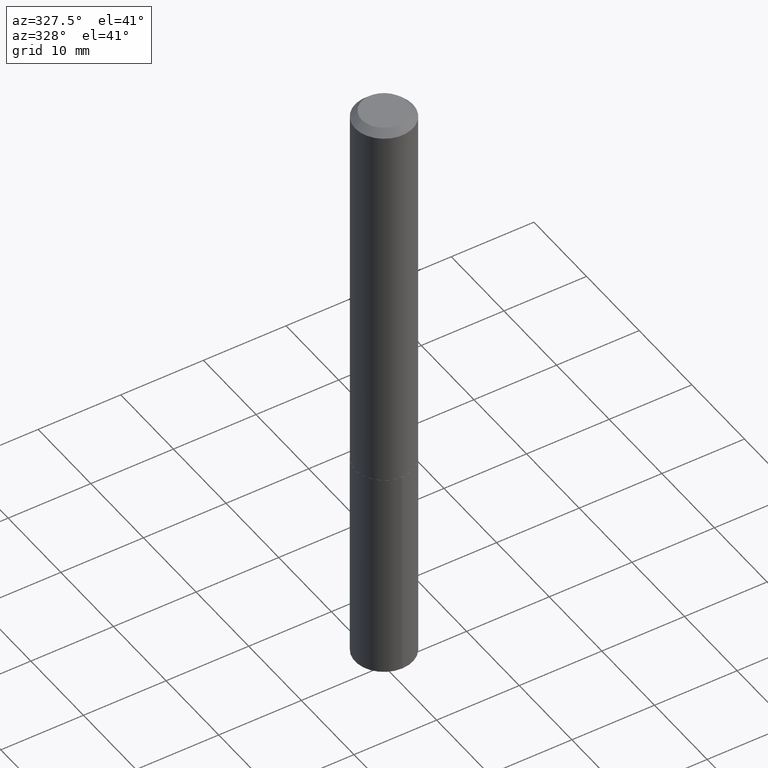
[diagram: clean part render]
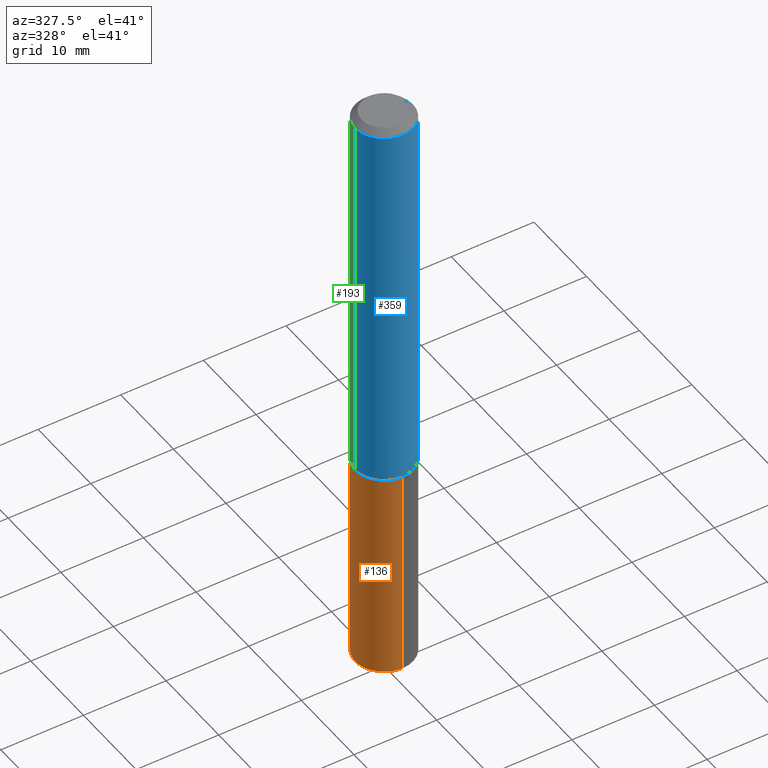
[diagram: same view with three faces highlighted in distinct colors, each labeled with its STEP entity id]
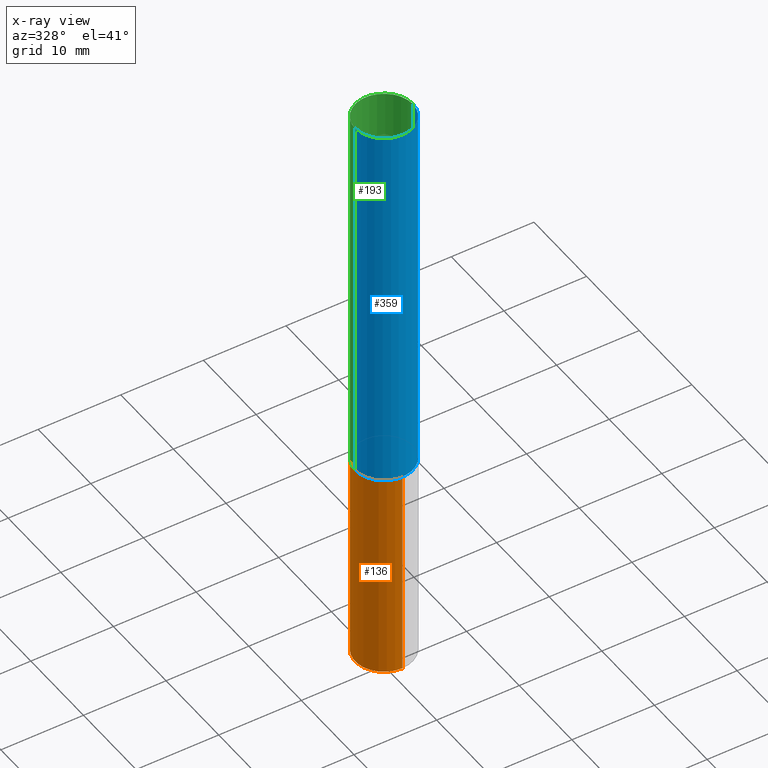
[diagram: x-ray of the same camera — body ghosted, the three highlighted faces saturated]
A machine part, auxiliary view with three faces highlighted in distinct colors.
The next image is the same camera in x-ray (body ghosted, the three faces saturated) — at least one of them is partly hidden behind the body in this view.
Their STEP definitions:

[orange] entity #136 — the highlighted cylindrical surface (edge-blend (fillet) strip) has radius 3.5001 mm, axis along (-0, 0, 1).
#27 = VERTEX_POINT ( 'NONE', #224 ) ;
#28 = CARTESIAN_POINT ( 'NONE',  ( 9.791278898774632598E-16, 0.1377999999999935665, -1.850400000000000489 ) ) ;
#39 = CARTESIAN_POINT ( 'NONE',  ( -9.622522569851223147E-16, -0.1378000000000064729, -1.850399999999999379 ) ) ;
#50 = ORIENTED_EDGE ( 'NONE', *, *, #162, .F. ) ;
#65 = CARTESIAN_POINT ( 'NONE',  ( 4.525095478964976833E-29, -6.460637069395356787E-15, -1.850400000000000045 ) ) ;
#76 = CIRCLE ( 'NONE', #302, 0.1378000000000000058 ) ;
#86 = ORIENTED_EDGE ( 'NONE', *, *, #241, .T. ) ;
#91 = AXIS2_PLACEMENT_3D ( 'NONE', #65, #169, #341 ) ;
#95 = CYLINDRICAL_SURFACE ( 'NONE', #91, 0.1378000000000000058 ) ;
#100 = DIRECTION ( 'NONE',  ( -2.445373653169523645E-29, 3.491617603377276597E-15, 1.000000000000000000 ) ) ;
#106 = CARTESIAN_POINT ( 'NONE',  ( 7.018280654488695032E-29, -1.002052217572859290E-14, -2.869951826892477520 ) ) ;
#109 = DIRECTION ( 'NONE',  ( -6.982962677686265922E-15, -1.000000000000000000, 3.964946289788480896E-15 ) ) ;
#127 = CARTESIAN_POINT ( 'NONE',  ( 4.525095478964976833E-29, -6.460637069395356787E-15, -1.850400000000000045 ) ) ;
#136 = ADVANCED_FACE ( 'NONE', ( #225 ), #95, .T. ) ;
#144 = CARTESIAN_POINT ( 'NONE',  ( -9.622522569851223147E-16, -0.1378000000000064729, -1.850399999999999379 ) ) ;
#159 = DIRECTION ( 'NONE',  ( -2.445373653169523925E-29, 3.491617603377276597E-15, 1.000000000000000000 ) ) ;
#162 = EDGE_CURVE ( 'NONE', #335, #27, #309, .T. ) ;
#169 = DIRECTION ( 'NONE',  ( -2.445373653169523645E-29, 3.491617603377276597E-15, 1.000000000000000000 ) ) ;
#180 = ORIENTED_EDGE ( 'NONE', *, *, #299, .F. ) ;
#196 = CIRCLE ( 'NONE', #203, 0.1378000000000000058 ) ;
#203 = AXIS2_PLACEMENT_3D ( 'NONE', #106, #320, #236 ) ;
#221 = CARTESIAN_POINT ( 'NONE',  ( -9.622522569850970711E-16, -0.1378000000000100256, -2.869951826892476632 ) ) ;
#224 = CARTESIAN_POINT ( 'NONE',  ( 9.791278898774887005E-16, 0.1377999999999935665, -1.850400000000000489 ) ) ;
#225 = FACE_OUTER_BOUND ( 'NONE', #256, .T. ) ;
#226 = EDGE_CURVE ( 'NONE', #308, #248, #381, .T. ) ;
#229 = DIRECTION ( 'NONE',  ( -2.445373653169523925E-29, 3.491617603377276597E-15, 1.000000000000000000 ) ) ;
#236 = DIRECTION ( 'NONE',  ( -6.982962677686265922E-15, -1.000000000000000000, 3.964946289788480896E-15 ) ) ;
#241 = EDGE_CURVE ( 'NONE', #335, #308, #196, .T. ) ;
#248 = VERTEX_POINT ( 'NONE', #39 ) ;
#256 = EDGE_LOOP ( 'NONE', ( #50, #86, #275, #180 ) ) ;
#260 = CARTESIAN_POINT ( 'NONE',  ( 9.791278898774883061E-16, 0.1377999999999899583, -2.869951826892477964 ) ) ;
#275 = ORIENTED_EDGE ( 'NONE', *, *, #226, .T. ) ;
#276 = VECTOR ( 'NONE', #159, 39.37007874015748143 ) ;
#299 = EDGE_CURVE ( 'NONE', #27, #248, #76, .T. ) ;
#302 = AXIS2_PLACEMENT_3D ( 'NONE', #127, #100, #109 ) ;
#308 = VERTEX_POINT ( 'NONE', #221 ) ;
#309 = LINE ( 'NONE', #28, #276 ) ;
#310 = VECTOR ( 'NONE', #229, 39.37007874015748143 ) ;
#320 = DIRECTION ( 'NONE',  ( -2.445373653169523645E-29, 3.491617603377276597E-15, 1.000000000000000000 ) ) ;
#335 = VERTEX_POINT ( 'NONE', #260 ) ;
#341 = DIRECTION ( 'NONE',  ( -6.982962677686265922E-15, -1.000000000000000000, 3.964946289788480896E-15 ) ) ;
#381 = LINE ( 'NONE', #144, #310 ) ;

[blue] entity #359 — the highlighted cylindrical surface (edge-blend (fillet) strip) has radius 3.5001 mm, axis along (-0, 0, 1).
#9 = VECTOR ( 'NONE', #40, 39.37007874015748143 ) ;
#14 = CARTESIAN_POINT ( 'NONE',  ( -0.1378000000000002279, -5.479763438848515411E-15, -1.849900000000000100 ) ) ;
#20 = CARTESIAN_POINT ( 'NONE',  ( -0.1378000000000001446, 9.791278898774190835E-16, -6.778292554371267040E-30 ) ) ;
#31 = DIRECTION ( 'NONE',  ( -2.445468806185136597E-29, 3.491481338843145583E-15, 1.000000000000000000 ) ) ;
#33 = LINE ( 'NONE', #287, #60 ) ;
#35 = CARTESIAN_POINT ( 'NONE',  ( -0.1378000000000000058, -2.304872170404972320E-15, -0.03125000000000020123 ) ) ;
#40 = DIRECTION ( 'NONE',  ( -2.445468806185136877E-29, 3.491481338843145188E-15, 1.000000000000000000 ) ) ;
#54 = ORIENTED_EDGE ( 'NONE', *, *, #194, .F. ) ;
#55 = ORIENTED_EDGE ( 'NONE', *, *, #338, .F. ) ;
#60 = VECTOR ( 'NONE', #191, 39.37007874015748143 ) ;
#61 = DIRECTION ( 'NONE',  ( 1.000000000000000000, -6.982962677686265922E-15, 4.876176775795935232E-29 ) ) ;
#103 = DIRECTION ( 'NONE',  ( 1.000000000000000000, -6.982962677686269077E-15, 0.000000000000000000 ) ) ;
#107 = CIRCLE ( 'NONE', #350, 0.1378000000000000058 ) ;
#122 = EDGE_CURVE ( 'NONE', #371, #332, #348, .T. ) ;
#128 = CARTESIAN_POINT ( 'NONE',  ( 4.523872744561884592E-29, -6.458891328725935284E-15, -1.849900000000000100 ) ) ;
#138 = CARTESIAN_POINT ( 'NONE',  ( 0.1378000000000000058, -1.071361048824016578E-15, -0.03125000000000020123 ) ) ;
#160 = ORIENTED_EDGE ( 'NONE', *, *, #370, .T. ) ;
#191 = DIRECTION ( 'NONE',  ( -2.445468806185136877E-29, 3.491481338843145188E-15, 1.000000000000000000 ) ) ;
#194 = EDGE_CURVE ( 'NONE', #371, #285, #383, .T. ) ;
#198 = CARTESIAN_POINT ( 'NONE',  ( 0.1378000000000002279, -7.421143585711104338E-15, -1.849900000000000100 ) ) ;
#213 = ORIENTED_EDGE ( 'NONE', *, *, #122, .T. ) ;
#220 = DIRECTION ( 'NONE',  ( -2.445468806185136597E-29, 3.491481338843145583E-15, 1.000000000000000000 ) ) ;
#223 = CARTESIAN_POINT ( 'NONE',  ( 0.000000000000000000, 0.000000000000000000, 0.000000000000000000 ) ) ;
#244 = AXIS2_PLACEMENT_3D ( 'NONE', #223, #31, #61 ) ;
#270 = AXIS2_PLACEMENT_3D ( 'NONE', #128, #220, #103 ) ;
#285 = VERTEX_POINT ( 'NONE', #35 ) ;
#287 = CARTESIAN_POINT ( 'NONE',  ( 0.1378000000000001446, -9.622522569851684631E-16, 6.719371597046805543E-30 ) ) ;
#289 = CARTESIAN_POINT ( 'NONE',  ( 7.642090019328600035E-31, -1.091087918388489897E-16, -0.03125000000000020123 ) ) ;
#319 = DIRECTION ( 'NONE',  ( 1.000000000000000000, -6.982962677686267499E-15, 0.000000000000000000 ) ) ;
#331 = VERTEX_POINT ( 'NONE', #138 ) ;
#332 = VERTEX_POINT ( 'NONE', #198 ) ;
#338 = EDGE_CURVE ( 'NONE', #285, #331, #107, .T. ) ;
#343 = CYLINDRICAL_SURFACE ( 'NONE', #244, 0.1378000000000001446 ) ;
#346 = DIRECTION ( 'NONE',  ( -2.445468806185136597E-29, 3.491481338843145583E-15, 1.000000000000000000 ) ) ;
#348 = CIRCLE ( 'NONE', #270, 0.1378000000000002279 ) ;
#350 = AXIS2_PLACEMENT_3D ( 'NONE', #289, #346, #319 ) ;
#359 = ADVANCED_FACE ( 'NONE', ( #374 ), #343, .T. ) ;
#370 = EDGE_CURVE ( 'NONE', #332, #331, #33, .T. ) ;
#371 = VERTEX_POINT ( 'NONE', #14 ) ;
#374 = FACE_OUTER_BOUND ( 'NONE', #389, .T. ) ;
#383 = LINE ( 'NONE', #20, #9 ) ;
#389 = EDGE_LOOP ( 'NONE', ( #54, #213, #160, #55 ) ) ;

[green] entity #193 — the highlighted cylindrical surface (edge-blend (fillet) strip) has radius 3.5001 mm, axis along (-0, 0, 1).
#9 = VECTOR ( 'NONE', #40, 39.37007874015748143 ) ;
#14 = CARTESIAN_POINT ( 'NONE',  ( -0.1378000000000002279, -5.479763438848515411E-15, -1.849900000000000100 ) ) ;
#20 = CARTESIAN_POINT ( 'NONE',  ( -0.1378000000000001446, 9.791278898774190835E-16, -6.778292554371267040E-30 ) ) ;
#32 = EDGE_LOOP ( 'NONE', ( #81, #274, #366, #388 ) ) ;
#33 = LINE ( 'NONE', #287, #60 ) ;
#35 = CARTESIAN_POINT ( 'NONE',  ( -0.1378000000000000058, -2.304872170404972320E-15, -0.03125000000000020123 ) ) ;
#40 = DIRECTION ( 'NONE',  ( -2.445468806185136877E-29, 3.491481338843145188E-15, 1.000000000000000000 ) ) ;
#48 = CIRCLE ( 'NONE', #255, 0.1378000000000002279 ) ;
#60 = VECTOR ( 'NONE', #191, 39.37007874015748143 ) ;
#72 = DIRECTION ( 'NONE',  ( -2.445468806185136597E-29, 3.491481338843145583E-15, 1.000000000000000000 ) ) ;
#79 = CARTESIAN_POINT ( 'NONE',  ( 0.000000000000000000, 0.000000000000000000, 0.000000000000000000 ) ) ;
#81 = ORIENTED_EDGE ( 'NONE', *, *, #264, .T. ) ;
#138 = CARTESIAN_POINT ( 'NONE',  ( 0.1378000000000000058, -1.071361048824016578E-15, -0.03125000000000020123 ) ) ;
#143 = DIRECTION ( 'NONE',  ( 1.000000000000000000, -6.982962677686267499E-15, 0.000000000000000000 ) ) ;
#191 = DIRECTION ( 'NONE',  ( -2.445468806185136877E-29, 3.491481338843145188E-15, 1.000000000000000000 ) ) ;
#193 = ADVANCED_FACE ( 'NONE', ( #281 ), #199, .T. ) ;
#194 = EDGE_CURVE ( 'NONE', #371, #285, #383, .T. ) ;
#198 = CARTESIAN_POINT ( 'NONE',  ( 0.1378000000000002279, -7.421143585711104338E-15, -1.849900000000000100 ) ) ;
#199 = CYLINDRICAL_SURFACE ( 'NONE', #342, 0.1378000000000001446 ) ;
#201 = DIRECTION ( 'NONE',  ( 1.000000000000000000, -6.982962677686269077E-15, 0.000000000000000000 ) ) ;
#207 = DIRECTION ( 'NONE',  ( -2.445468806185136597E-29, 3.491481338843145583E-15, 1.000000000000000000 ) ) ;
#242 = EDGE_CURVE ( 'NONE', #331, #285, #249, .T. ) ;
#249 = CIRCLE ( 'NONE', #376, 0.1378000000000000058 ) ;
#255 = AXIS2_PLACEMENT_3D ( 'NONE', #265, #72, #201 ) ;
#263 = DIRECTION ( 'NONE',  ( 1.000000000000000000, -6.982962677686265922E-15, 4.876176775795935232E-29 ) ) ;
#264 = EDGE_CURVE ( 'NONE', #332, #371, #48, .T. ) ;
#265 = CARTESIAN_POINT ( 'NONE',  ( 4.523872744561884592E-29, -6.458891328725935284E-15, -1.849900000000000100 ) ) ;
#274 = ORIENTED_EDGE ( 'NONE', *, *, #194, .T. ) ;
#281 = FACE_OUTER_BOUND ( 'NONE', #32, .T. ) ;
#285 = VERTEX_POINT ( 'NONE', #35 ) ;
#287 = CARTESIAN_POINT ( 'NONE',  ( 0.1378000000000001446, -9.622522569851684631E-16, 6.719371597046805543E-30 ) ) ;
#295 = CARTESIAN_POINT ( 'NONE',  ( 7.642090019328600035E-31, -1.091087918388489897E-16, -0.03125000000000020123 ) ) ;
#331 = VERTEX_POINT ( 'NONE', #138 ) ;
#332 = VERTEX_POINT ( 'NONE', #198 ) ;
#342 = AXIS2_PLACEMENT_3D ( 'NONE', #79, #207, #263 ) ;
#358 = DIRECTION ( 'NONE',  ( -2.445468806185136597E-29, 3.491481338843145583E-15, 1.000000000000000000 ) ) ;
#366 = ORIENTED_EDGE ( 'NONE', *, *, #242, .F. ) ;
#370 = EDGE_CURVE ( 'NONE', #332, #331, #33, .T. ) ;
#371 = VERTEX_POINT ( 'NONE', #14 ) ;
#376 = AXIS2_PLACEMENT_3D ( 'NONE', #295, #358, #143 ) ;
#383 = LINE ( 'NONE', #20, #9 ) ;
#388 = ORIENTED_EDGE ( 'NONE', *, *, #370, .F. ) ;